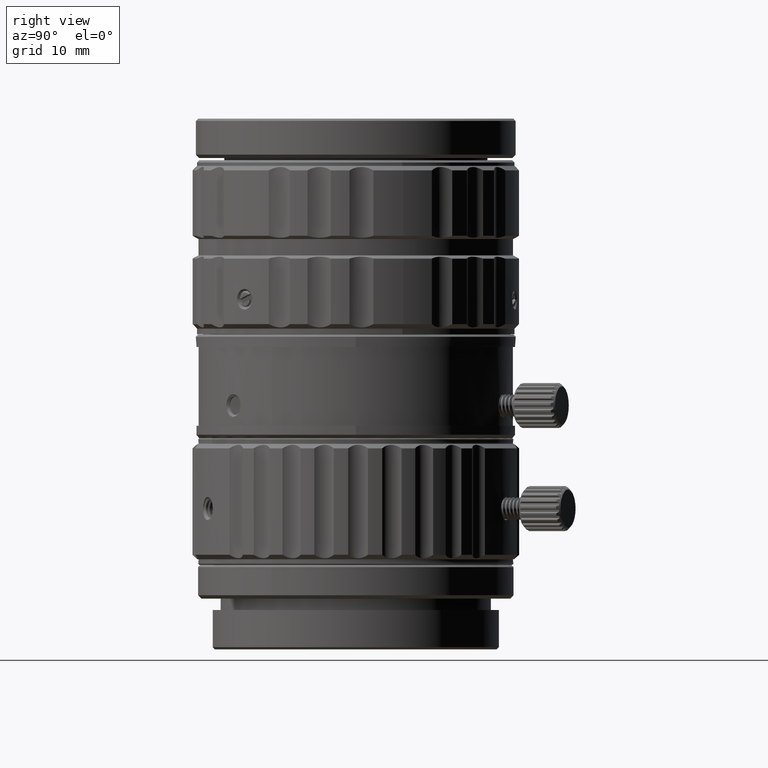
[diagram: clean part render]
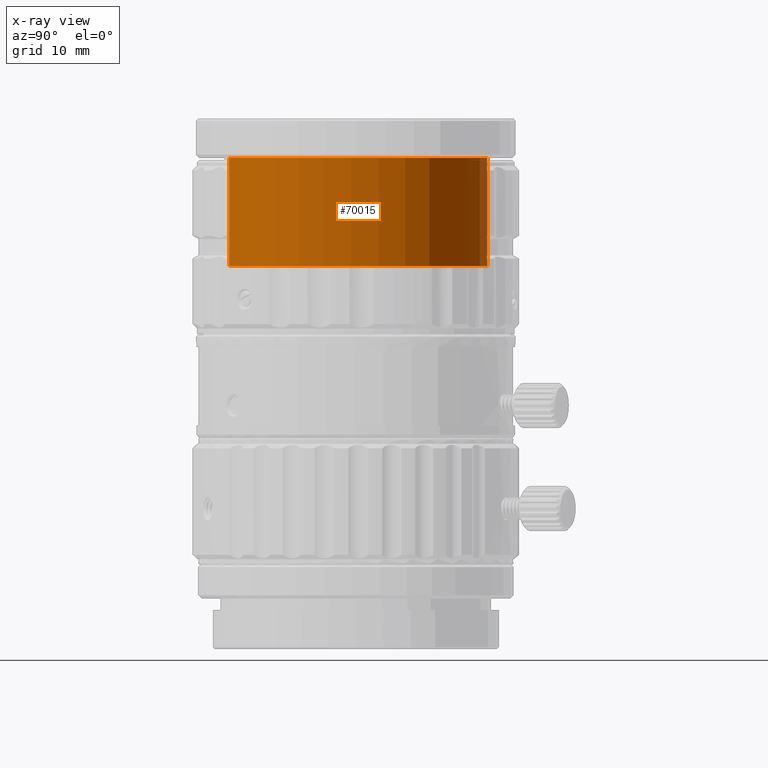
[diagram: x-ray — body ghosted, one internal face saturated and labeled with its STEP entity id]
A machine part, right view, then the same camera in x-ray: the body is ghosted and one INTERNAL B-rep face — a face not visible from any outside direction — is saturated and labeled: STEP entity #70015.
In plain terms, the highlighted cylindrical surface (partial cylindrical patch) has radius 11.7 mm, axis along (0, 0, 1).
Its self-contained STEP definition (entity closure, byte-faithful):
#2227 = EDGE_CURVE ( 'NONE', #39028, #57033, #11391, .T. ) ;
#7148 = VECTOR ( 'NONE', #60809, 1000.000000000000000 ) ;
#7296 = AXIS2_PLACEMENT_3D ( 'NONE', #13047, #62227, #50483 ) ;
#8387 = CARTESIAN_POINT ( 'NONE',  ( -3.224957063059029405, 11.24676184247829269, 42.11993545905000502 ) ) ;
#10977 = EDGE_CURVE ( 'NONE', #22224, #67937, #36052, .T. ) ;
#11250 = ORIENTED_EDGE ( 'NONE', *, *, #14053, .T. ) ;
#11391 = LINE ( 'NONE', #12589, #60819 ) ;
#11408 = CARTESIAN_POINT ( 'NONE',  ( 3.224957063059029849, -11.24676184247829092, 42.11993545905000502 ) ) ;
#12589 = CARTESIAN_POINT ( 'NONE',  ( -3.224957063059027185, 11.24676184247828559, 2.580435459049999825 ) ) ;
#12824 = EDGE_CURVE ( 'NONE', #57033, #67937, #39720, .T. ) ;
#13047 = CARTESIAN_POINT ( 'NONE',  ( 0.000000000000000000, 0.000000000000000000, 32.51993545904999650 ) ) ;
#14053 = EDGE_CURVE ( 'NONE', #22224, #39028, #42357, .T. ) ;
#14108 = ORIENTED_EDGE ( 'NONE', *, *, #2227, .T. ) ;
#19936 = CARTESIAN_POINT ( 'NONE',  ( 0.000000000000000000, 0.000000000000000000, 2.580435459049999825 ) ) ;
#22224 = VERTEX_POINT ( 'NONE', #49478 ) ;
#22592 = ORIENTED_EDGE ( 'NONE', *, *, #12824, .T. ) ;
#24730 = DIRECTION ( 'NONE',  ( -0.2756373558170588933, 0.9612616959383016857, 0.000000000000000000 ) ) ;
#28767 = CARTESIAN_POINT ( 'NONE',  ( 3.224957063059028517, -11.24676184247828559, 2.580435459049999825 ) ) ;
#29142 = ORIENTED_EDGE ( 'NONE', *, *, #10977, .F. ) ;
#36052 = LINE ( 'NONE', #28767, #7148 ) ;
#37107 = AXIS2_PLACEMENT_3D ( 'NONE', #19936, #63401, #56106 ) ;
#38159 = DIRECTION ( 'NONE',  ( 0.000000000000000000, 0.000000000000000000, -1.000000000000000000 ) ) ;
#39028 = VERTEX_POINT ( 'NONE', #61353 ) ;
#39720 = CIRCLE ( 'NONE', #42301, 11.70000000000000284 ) ;
#42301 = AXIS2_PLACEMENT_3D ( 'NONE', #56025, #38159, #24730 ) ;
#42357 = CIRCLE ( 'NONE', #7296, 11.70000000000000284 ) ;
#46380 = EDGE_LOOP ( 'NONE', ( #11250, #14108, #22592, #29142 ) ) ;
#49478 = CARTESIAN_POINT ( 'NONE',  ( 3.224957063059589846, -11.24676184247813282, 32.51993545904999650 ) ) ;
#50483 = DIRECTION ( 'NONE',  ( 0.2756373558170588933, -0.9612616959383016857, 0.000000000000000000 ) ) ;
#56025 = CARTESIAN_POINT ( 'NONE',  ( 0.000000000000000000, 0.000000000000000000, 42.11993545905000502 ) ) ;
#56106 = DIRECTION ( 'NONE',  ( 0.2756373558170111537, -0.9612616959383154525, 0.000000000000000000 ) ) ;
#57033 = VERTEX_POINT ( 'NONE', #8387 ) ;
#60809 = DIRECTION ( 'NONE',  ( 0.000000000000000000, 0.000000000000000000, 1.000000000000000000 ) ) ;
#60819 = VECTOR ( 'NONE', #73182, 1000.000000000000000 ) ;
#61353 = CARTESIAN_POINT ( 'NONE',  ( -3.224957063059029405, 11.24676184247829269, 32.51993545904999650 ) ) ;
#62227 = DIRECTION ( 'NONE',  ( 0.000000000000000000, 0.000000000000000000, 1.000000000000000000 ) ) ;
#63401 = DIRECTION ( 'NONE',  ( 0.000000000000000000, 0.000000000000000000, 1.000000000000000000 ) ) ;
#67937 = VERTEX_POINT ( 'NONE', #11408 ) ;
#68272 = FACE_OUTER_BOUND ( 'NONE', #46380, .T. ) ;
#70015 = ADVANCED_FACE ( 'NONE', ( #68272 ), #73956, .T. ) ;
#73182 = DIRECTION ( 'NONE',  ( 0.000000000000000000, 0.000000000000000000, 1.000000000000000000 ) ) ;
#73956 = CYLINDRICAL_SURFACE ( 'NONE', #37107, 11.69999999999999396 ) ;